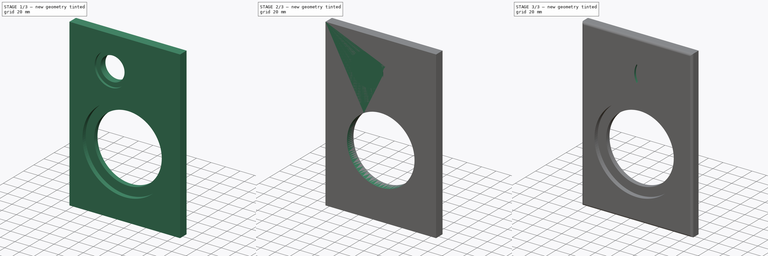
[diagram: build sequence overview — one tinted view per stage of 3, left to right]
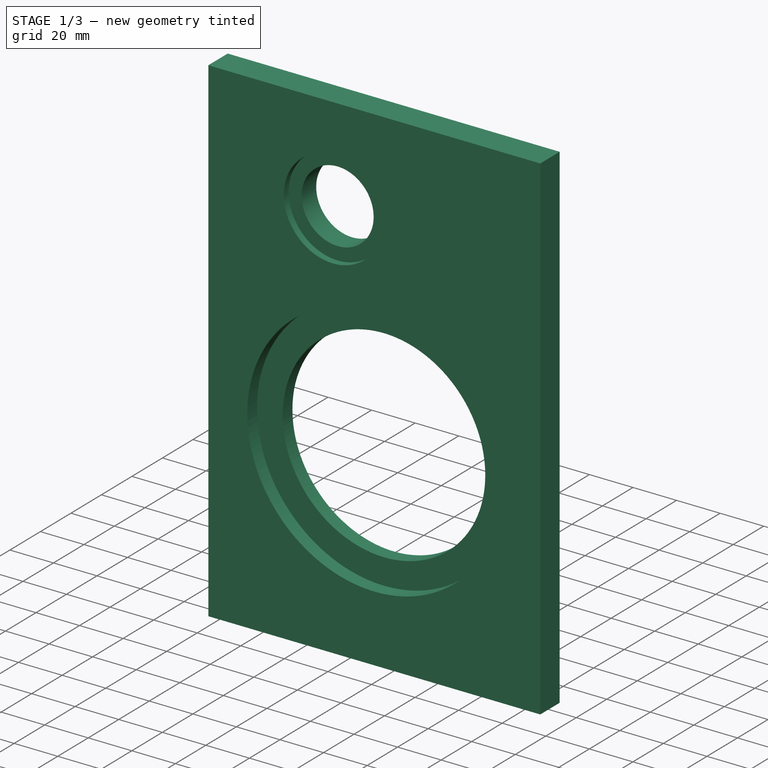
[diagram: stage 1 of 3 — iso view after this stage's code; geometry added in this stage tinted green]
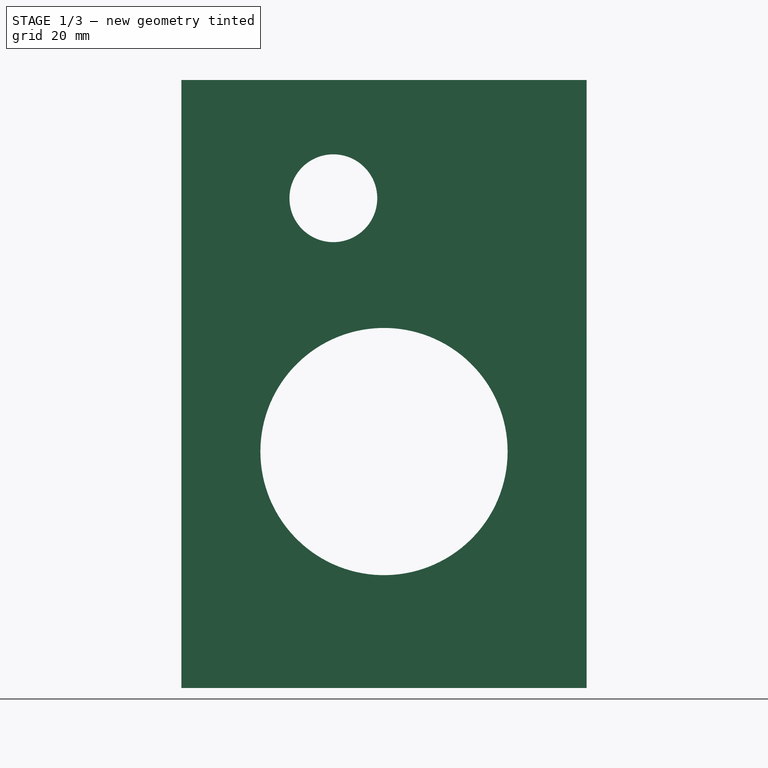
[diagram: stage 1 of 3 — front view after this stage's code; geometry added in this stage tinted green]
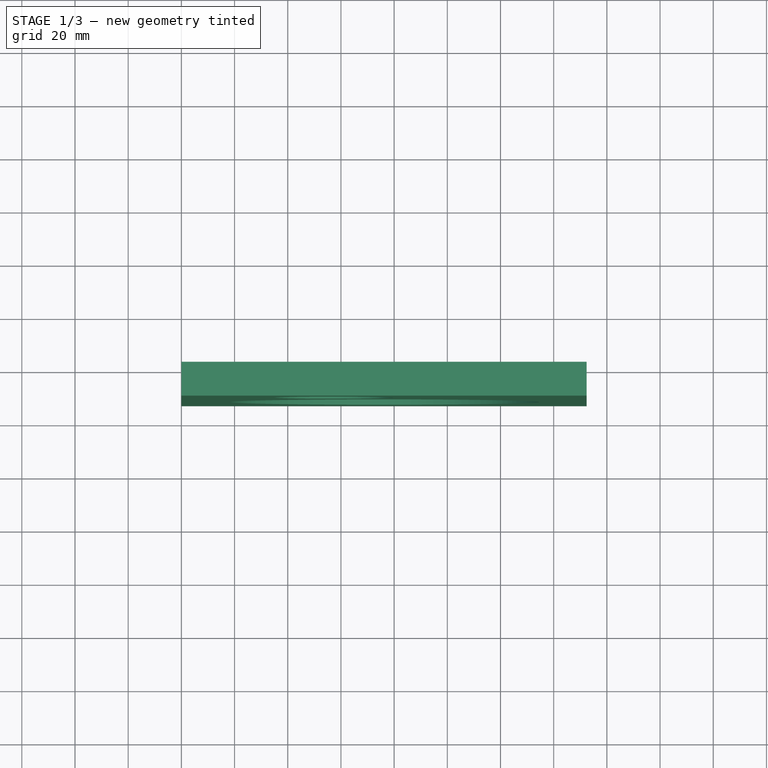
[diagram: stage 1 of 3 — top view after this stage's code; geometry added in this stage tinted green]
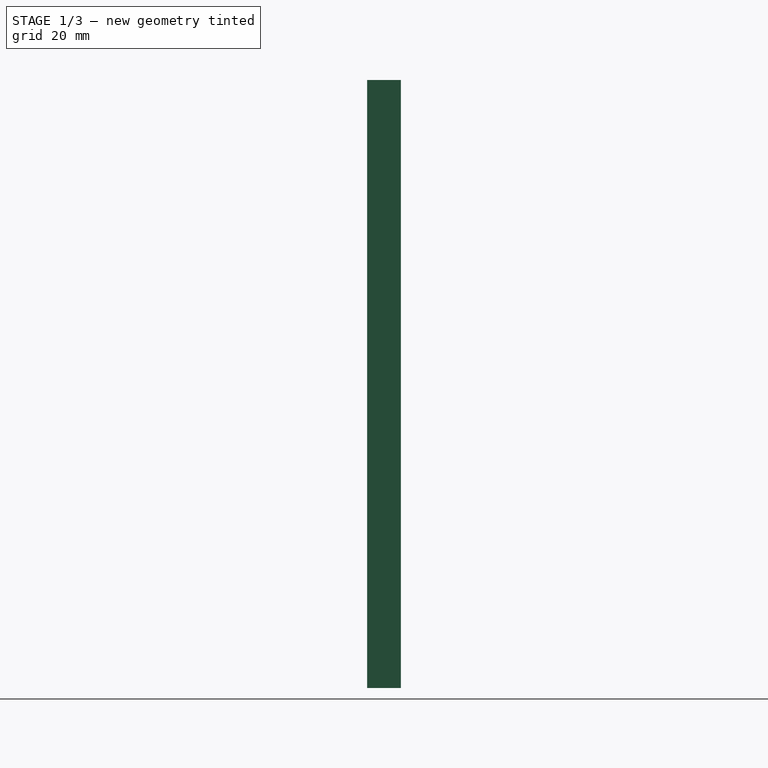
[diagram: stage 1 of 3 — right view after this stage's code; geometry added in this stage tinted green]
FCSTD DOCUMENT  (FreeCAD 1.0R39319 (Git))
Label: Overnight Sensations
License: All rights reserved
LicenseURL: https://en.wikipedia.org/wiki/All_rights_reserved
objects: Sketcher::SketchObject×8, PartDesign::Pocket×4, Spreadsheet::Sheet×2, PartDesign::Pad×2, PartDesign::Fillet×2, PartDesign::Body×2
note: 42 computed .brp shape members not serialized (recipe doc carries the construction recipe); baked Part::Feature solids carry a one-line shape summary decoded from their .brp

FEATURE [PartDesign::Body] Body  label="Baffle Left"
  AllowCompound = false
  Group = -> [Sketch,Sketch001,Pad,Sketch002,Pocket,Sketch003,Pocket001,Fillet]
  Origin = -> Origin
  Placement = pos=(-228.6,0,0) rot=(0,0,1;0rad)
  Tip = -> Fillet
FEATURE [Sketcher::SketchObject] Sketch004  label="Baffle Master Sketch001"
  ArcFitTolerance = 1e-06
  AttachmentSupport = -> [XZ_Plane001]
  FullyConstrained = true
  MakeInternals = false
  MapMode = 5
  Placement = pos=(0,0,0) rot=(1,0,0;1.5708rad)
  expr: Constraints[11] = Spreadsheet001.tweeter_cutout_diameter
  expr: Constraints[12] = Spreadsheet001.mid_cutout_diameter
  expr: Constraints[17] = Spreadsheet001.mid_outside_diameter
  expr: Constraints[20] = Spreadsheet001.tweeter_outside_diameter
  expr: Constraints[8] = Spreadsheet001.overall_width
  expr: Constraints[9] = Spreadsheet001.overall_height
  sketch-geometry (9):
    g0: LineSegment StartX=0 StartY=0 StartZ=0 EndX=152.4 EndY=0 EndZ=0
    g1: LineSegment StartX=152.4 StartY=0 StartZ=0 EndX=152.4 EndY=228.6 EndZ=0
    g2: LineSegment StartX=152.4 StartY=228.6 StartZ=0 EndX=0 EndY=228.6 EndZ=0
    g3: LineSegment StartX=0 StartY=228.6 StartZ=0 EndX=0 EndY=0 EndZ=0
    g4: Circle CenterX=57.15 CenterY=184.15 CenterZ=0 NormalX=0 NormalY=0 NormalZ=1 AngleXU=0 Radius=16.51
    g5: Circle CenterX=76.2 CenterY=88.9 CenterZ=0 NormalX=0 NormalY=0 NormalZ=1 AngleXU=0 Radius=46.482
    g6: GeomPoint [constr] X=76.2 Y=0 Z=0
    g7: Circle CenterX=76.2 CenterY=88.9 CenterZ=0 NormalX=0 NormalY=0 NormalZ=1 AngleXU=0 Radius=58.293
    g8: Circle CenterX=57.15 CenterY=184.15 CenterZ=0 NormalX=0 NormalY=0 NormalZ=1 AngleXU=0 Radius=22.479
  constraints (22):
    c: Coincident(g0,g1)
    c: Coincident(g1,g2)
    c: Coincident(g2,g3)
    c: Coincident(g3,g0)
    c: Horizontal(g0)
    c: Horizontal(g2)
    c: Vertical(g1)
    c: Vertical(g3)
    c: Distance(g1,g3) = 152.4
    c: Distance(g0,g2) = 228.6
    c: Coincident(g0,g-1)
    c: Diameter(g4) = 33.02
    c: Diameter(g5) = 92.964
    c: Distance(g4,g2) = 44.45
    c: Distance(g5,g2) = 139.7
    c: Symmetric(g0,g0,g6)
    c: Vertical(g6,g5)
    c: Diameter(g7) = 116.586
    c: Coincident(g7,g5)
    c: Coincident(g8,g4)
    c: Diameter(g8) = 44.958
    c: Distance(g4,g1) = 95.25
FEATURE [Sketcher::SketchObject] Sketch005
  ArcFitTolerance = 1e-06
  AttachmentSupport = -> [XZ_Plane001]
  ExternalGeometry = -> [Sketch004]
  FullyConstrained = true
  MakeInternals = false
  MapMode = 5
  Placement = pos=(0,0,0) rot=(1,0,0;1.5708rad)
  sketch-geometry (6):
    g0: LineSegment StartX=0 StartY=228.6 StartZ=0 EndX=0 EndY=0 EndZ=0
    g1: LineSegment StartX=0 StartY=0 StartZ=0 EndX=152.4 EndY=0 EndZ=0
    g2: LineSegment StartX=152.4 StartY=0 StartZ=0 EndX=152.4 EndY=228.6 EndZ=0
    g3: LineSegment StartX=152.4 StartY=228.6 StartZ=0 EndX=0 EndY=228.6 EndZ=0
    g4: Circle CenterX=57.15 CenterY=184.15 CenterZ=0 NormalX=0 NormalY=0 NormalZ=1 AngleXU=0 Radius=16.51
    g5: Circle CenterX=76.2 CenterY=88.9 CenterZ=0 NormalX=0 NormalY=0 NormalZ=1 AngleXU=0 Radius=46.482
  constraints (14):
    c: Coincident(g0,g1)
    c: Coincident(g1,g2)
    c: Coincident(g2,g3)
    c: Coincident(g3,g0)
    c: Vertical(g0)
    c: Vertical(g2)
    c: Horizontal(g1)
    c: Horizontal(g3)
    c: Coincident(g0,g-4)
    c: Coincident(g1,g-6)
    c: Coincident(g4,g-8)
    c: Equal(g4,g-8)
    c: Coincident(g5,g-7)
    c: Equal(g5,g-7)
FEATURE [PartDesign::Pad] Pad001
  Direction = (0,-1,2e-16)
  Length = 12.7
  Length2 = 10
  Placement = pos=(0,0,0) rot=(1,0,0;1.5708rad)
  Profile = -> Sketch005
  ReferenceAxis = -> Sketch005 [N_Axis]
  Refine = true
  Suppressed = false
  Type = 0
  expr: Length = Spreadsheet001.wall_thickness
FEATURE [Sketcher::SketchObject] Sketch006
  ArcFitTolerance = 1e-06
  AttachmentSupport = -> [Pad001]
  ExternalGeometry = -> [Sketch004]
  FullyConstrained = false
  MakeInternals = false
  MapMode = 5
  Placement = pos=(0,-12.7,0) rot=(1,0,0;1.5708rad)
  sketch-geometry (1):
    g0: Circle CenterX=76.2 CenterY=88.9 CenterZ=0 NormalX=0 NormalY=0 NormalZ=1 AngleXU=0 Radius=58.293
FEATURE [PartDesign::Pocket] Pocket002
  BaseFeature = -> Pad001
  Direction = (0,1,-2e-16)
  Length = 6.35
  Length2 = 5
  Placement = pos=(0,0,0) rot=(1,0,0;1.5708rad)
  Profile = -> Sketch006
  ReferenceAxis = -> Sketch006 [N_Axis]
  Refine = true
  Suppressed = false
  Type = 0
  expr: Length = Spreadsheet001.mid_baffle_depth
FEATURE [Sketcher::SketchObject] Sketch007
  ArcFitTolerance = 1e-06
  AttachmentSupport = -> [Pocket002]
  ExternalGeometry = -> [Sketch004]
  FullyConstrained = true
  MakeInternals = false
  MapMode = 5
  Placement = pos=(0,-12.7,0) rot=(1,0,0;1.5708rad)
  sketch-geometry (1):
    g0: Circle CenterX=57.15 CenterY=184.15 CenterZ=0 NormalX=0 NormalY=0 NormalZ=1 AngleXU=0 Radius=22.479
  constraints (2):
    c: Coincident(g0,g-3)
    c: Equal(g0,g-3)
FEATURE [PartDesign::Pocket] Pocket003
  BaseFeature = -> Pocket002
  Direction = (0,1,-2e-16)
  Length = 3.175
  Length2 = 5
  Placement = pos=(0,0,0) rot=(1,0,0;1.5708rad)
  Profile = -> Sketch007
  ReferenceAxis = -> Sketch007 [N_Axis]
  Refine = true
  Suppressed = false
  Type = 0
  expr: Length = Spreadsheet001.tweeter_baffle_depth
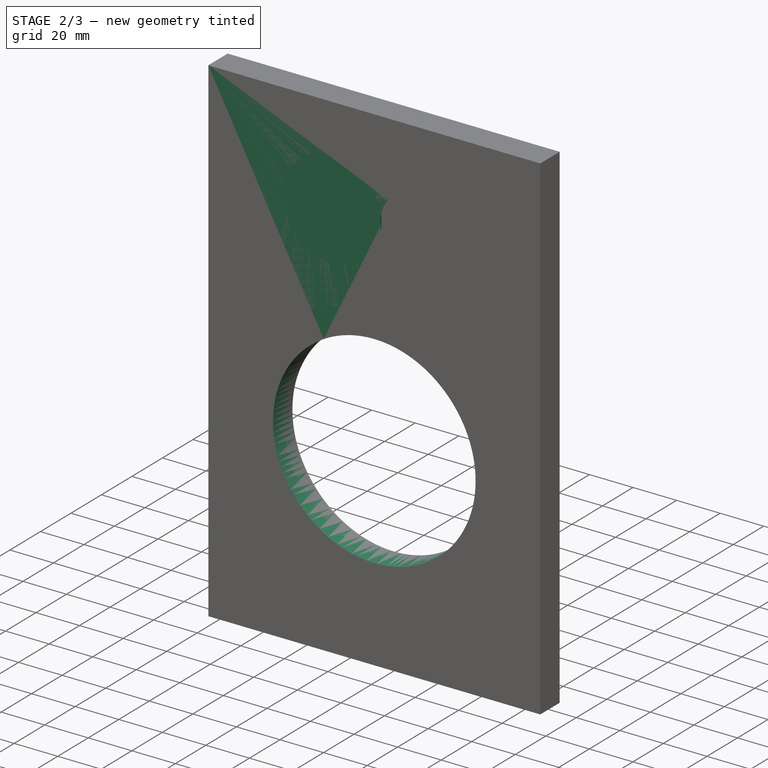
[diagram: stage 2 of 3 — iso view after this stage's code; geometry added in this stage tinted green]
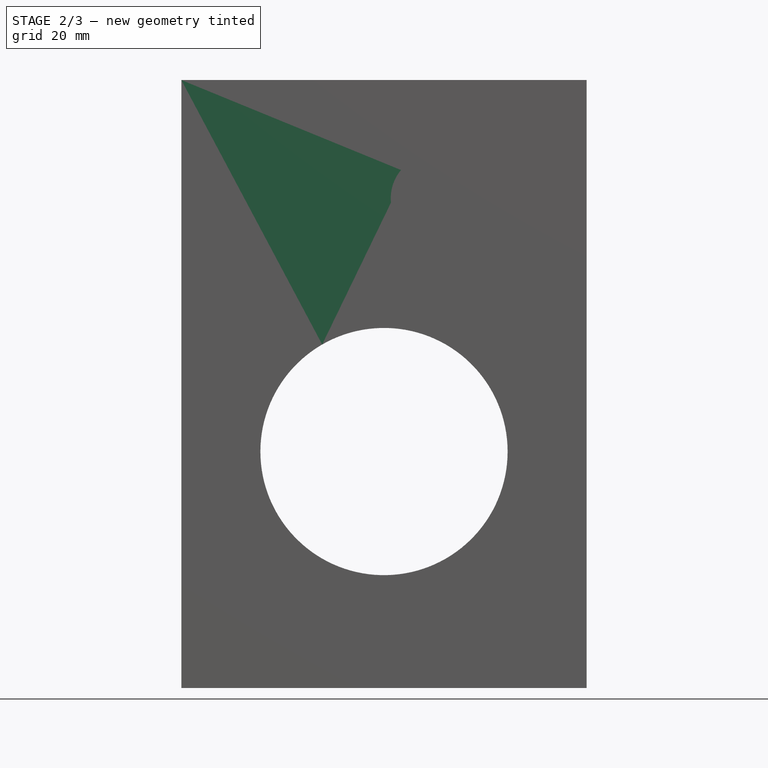
[diagram: stage 2 of 3 — front view after this stage's code; geometry added in this stage tinted green]
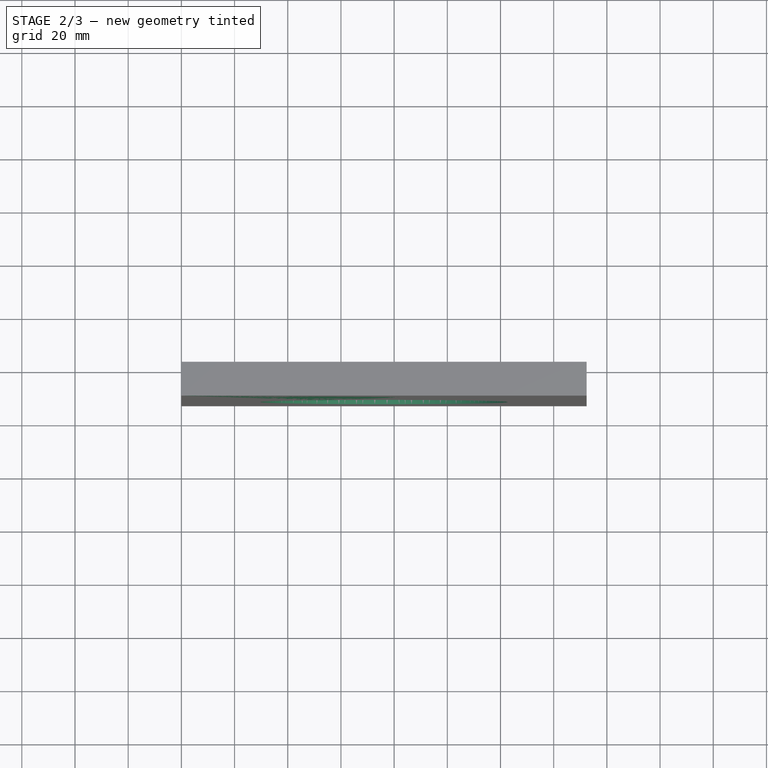
[diagram: stage 2 of 3 — top view after this stage's code; geometry added in this stage tinted green]
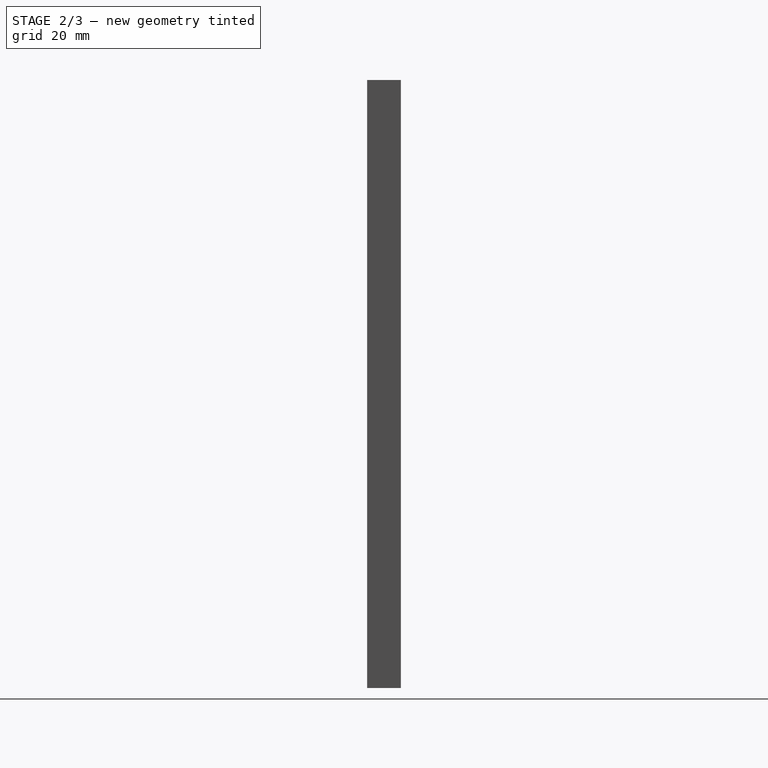
[diagram: stage 2 of 3 — right view after this stage's code; geometry added in this stage tinted green]
FEATURE [Sketcher::SketchObject] Sketch  label="Baffle Master Sketch"
  ArcFitTolerance = 1e-06
  AttachmentSupport = -> [XZ_Plane]
  FullyConstrained = true
  MakeInternals = false
  MapMode = 5
  Placement = pos=(0,0,0) rot=(1,0,0;1.5708rad)
  expr: Constraints[11] = Spreadsheet.tweeter_cutout_diameter
  expr: Constraints[12] = Spreadsheet.mid_cutout_diameter
  expr: Constraints[18] = Spreadsheet.mid_outside_diameter
  expr: Constraints[21] = Spreadsheet.tweeter_outside_diameter
  expr: Constraints[8] = Spreadsheet.overall_width
  expr: Constraints[9] = Spreadsheet.overall_height
  sketch-geometry (9):
    g0: LineSegment StartX=0 StartY=0 StartZ=0 EndX=152.4 EndY=0 EndZ=0
    g1: LineSegment StartX=152.4 StartY=0 StartZ=0 EndX=152.4 EndY=228.6 EndZ=0
    g2: LineSegment StartX=152.4 StartY=228.6 StartZ=0 EndX=0 EndY=228.6 EndZ=0
    g3: LineSegment StartX=0 StartY=228.6 StartZ=0 EndX=0 EndY=0 EndZ=0
    g4: Circle CenterX=95.25 CenterY=184.15 CenterZ=0 NormalX=0 NormalY=0 NormalZ=1 AngleXU=0 Radius=16.51
    g5: Circle CenterX=76.2 CenterY=88.9 CenterZ=0 NormalX=0 NormalY=0 NormalZ=1 AngleXU=0 Radius=46.482
    g6: GeomPoint [constr] X=76.2 Y=0 Z=0
    g7: Circle CenterX=76.2 CenterY=88.9 CenterZ=0 NormalX=0 NormalY=0 NormalZ=1 AngleXU=0 Radius=58.293
    g8: Circle CenterX=95.25 CenterY=184.15 CenterZ=0 NormalX=0 NormalY=0 NormalZ=1 AngleXU=0 Radius=22.479
  constraints (22):
    c: Coincident(g0,g1)
    c: Coincident(g1,g2)
    c: Coincident(g2,g3)
    c: Coincident(g3,g0)
    c: Horizontal(g0)
    c: Horizontal(g2)
    c: Vertical(g1)
    c: Vertical(g3)
    c: Distance(g1,g3) = 152.4
    c: Distance(g0,g2) = 228.6
    c: Coincident(g0,g-1)
    c: Diameter(g4) = 33.02
    c: Diameter(g5) = 92.964
    c: Distance(g4,g2) = 44.45
    c: Distance(g4,g3) = 95.25
    c: Distance(g5,g2) = 139.7
    c: Symmetric(g0,g0,g6)
    c: Vertical(g6,g5)
    c: Diameter(g7) = 116.586
    c: Coincident(g7,g5)
    c: Coincident(g8,g4)
    c: Diameter(g8) = 44.958
FEATURE [Spreadsheet::Sheet] Spreadsheet
  cells = A2='Speaker Specifications; B3='Power; C3='Impedance; D3='Outside Diameter; E3='Cutout Diameter; F3='Baffle Depth; G3='Specification Link; A4='HiVi-B4N-4; B4==25 W; C4='8 Ohms; D4(mid_outside_diameter)==4.59 "; E4(mid_cutout_diameter)==3.66 "; F4(mid_baffle_depth)==0.25 "; G4='https://www.parts-express.com/HiVi-B4N-4-Aluminum-Midbass-Round-Frame-297-429?quantity=1; A5='Dayton-Audio-ND20FA-6-3-4; B5==15 W; C5='6 Ohms; D5(tweeter_outside_diameter)==1.77 "; E5(tweeter_cutout_diameter)==1.3 "; F5(tweeter_baffle_depth)==0.125 "; G5='https://www.parts-express.com/Dayton-Audio-ND20FA-6-3-4-Soft-Dome-Neodymium-Tweeter-275-030?quantity=1; A7='Enclosure Specifications; B7='1/2" MDF; A8='Material Thickness; B8(wall_thickness)==0.5 "; A9='Height; B9(overall_height)==9 "; A10='Width; B10(overall_width)==6 "; A11='Depth; B11(overall_depth)==8 "
FEATURE [Sketcher::SketchObject] Sketch001
  ArcFitTolerance = 1e-06
  AttachmentSupport = -> [XZ_Plane]
  ExternalGeometry = -> [Sketch]
  FullyConstrained = true
  MakeInternals = false
  MapMode = 5
  Placement = pos=(0,0,0) rot=(1,0,0;1.5708rad)
  sketch-geometry (6):
    g0: LineSegment StartX=0 StartY=228.6 StartZ=0 EndX=0 EndY=0 EndZ=0
    g1: LineSegment StartX=0 StartY=0 StartZ=0 EndX=152.4 EndY=0 EndZ=0
    g2: LineSegment StartX=152.4 StartY=0 StartZ=0 EndX=152.4 EndY=228.6 EndZ=0
    g3: LineSegment StartX=152.4 StartY=228.6 StartZ=0 EndX=0 EndY=228.6 EndZ=0
    g4: Circle CenterX=95.25 CenterY=184.15 CenterZ=0 NormalX=0 NormalY=0 NormalZ=1 AngleXU=0 Radius=16.51
    g5: Circle CenterX=76.2 CenterY=88.9 CenterZ=0 NormalX=0 NormalY=0 NormalZ=1 AngleXU=0 Radius=46.482
  constraints (14):
    c: Coincident(g0,g1)
    c: Coincident(g1,g2)
    c: Coincident(g2,g3)
    c: Coincident(g3,g0)
    c: Vertical(g0)
    c: Vertical(g2)
    c: Horizontal(g1)
    c: Horizontal(g3)
    c: Coincident(g0,g-4)
    c: Coincident(g1,g-6)
    c: Coincident(g4,g-8)
    c: Equal(g4,g-8)
    c: Coincident(g5,g-7)
    c: Equal(g5,g-7)
FEATURE [PartDesign::Pad] Pad
  Direction = (0,-1,2e-16)
  Length = 12.7
  Length2 = 10
  Placement = pos=(0,0,0) rot=(1,0,0;1.5708rad)
  Profile = -> Sketch001
  ReferenceAxis = -> Sketch001 [N_Axis]
  Refine = true
  Suppressed = false
  Type = 0
  expr: Length = Spreadsheet.wall_thickness
FEATURE [PartDesign::Fillet] Fillet001
  Base = -> Pocket003 [Edge7,Edge4,Edge10,Edge14]
  BaseFeature = -> Pocket003
  Placement = pos=(0,0,0) rot=(1,0,0;1.5708rad)
  Radius = 3.175
  Refine = true
  SupportTransform = false
  Suppressed = false
  UseAllEdges = false
FEATURE [PartDesign::Body] Body001  label="Baffle Right"
  AllowCompound = false
  Group = -> [Sketch004,Sketch005,Pad001,Sketch006,Pocket002,Sketch007,Pocket003,Fillet001]
  Origin = -> Origin001
  Tip = -> Fillet001
FEATURE [Spreadsheet::Sheet] Spreadsheet001
  cells = A2='Speaker Specifications; B3='Power; C3='Impedance; D3='Outside Diameter; E3='Cutout Diameter; F3='Baffle Depth; G3='Specification Link; A4='HiVi-B4N-4; B4==25 W; C4='8 Ohms; D4(mid_outside_diameter)==4.59 "; E4(mid_cutout_diameter)==3.66 "; F4(mid_baffle_depth)==0.25 "; G4='https://www.parts-express.com/HiVi-B4N-4-Aluminum-Midbass-Round-Frame-297-429?quantity=1; A5='Dayton-Audio-ND20FA-6-3-4; B5==15 W; C5='6 Ohms; D5(tweeter_outside_diameter)==1.77 "; E5(tweeter_cutout_diameter)==1.3 "; F5(tweeter_baffle_depth)==0.125 "; G5='https://www.parts-express.com/Dayton-Audio-ND20FA-6-3-4-Soft-Dome-Neodymium-Tweeter-275-030?quantity=1; A7='Enclosure Specifications; B7='1/2" MDF; A8='Material Thickness; B8(wall_thickness)==0.5 "; A9='Height; B9(overall_height)==9 "; A10='Width; B10(overall_width)==6 "; A11='Depth; B11(overall_depth)==8 "
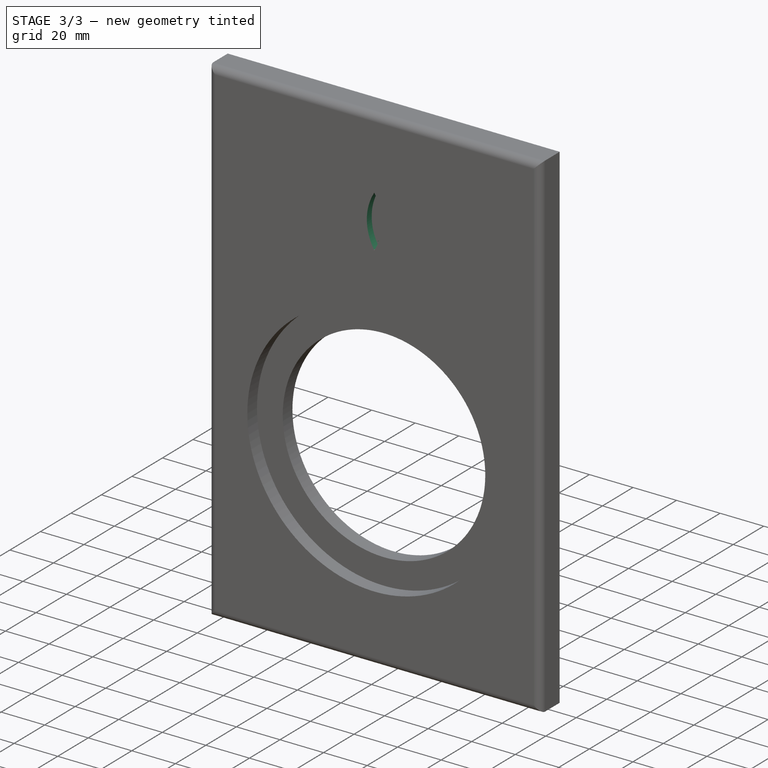
[diagram: stage 3 of 3 — iso view after this stage's code; geometry added in this stage tinted green]
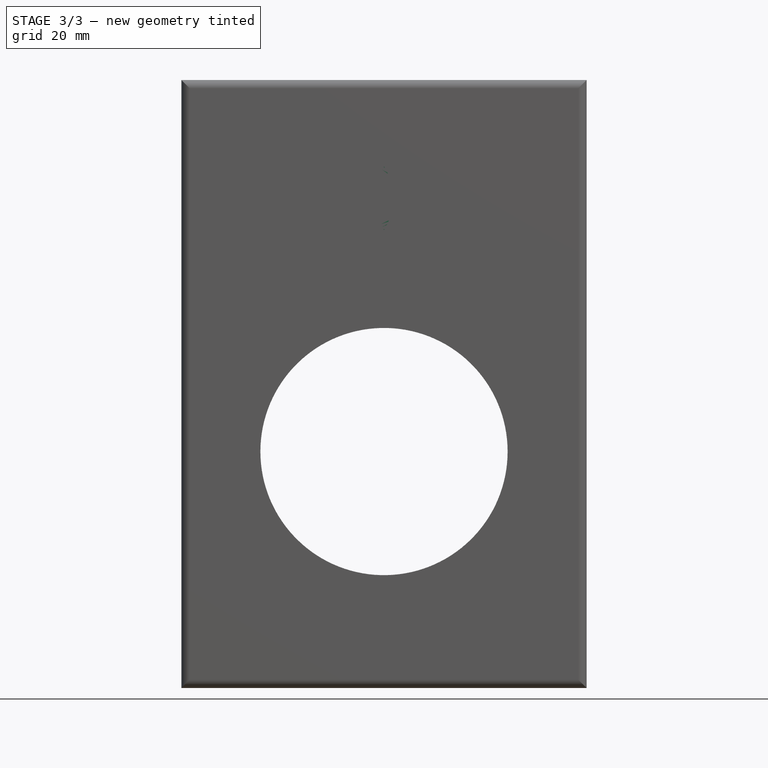
[diagram: stage 3 of 3 — front view after this stage's code; geometry added in this stage tinted green]
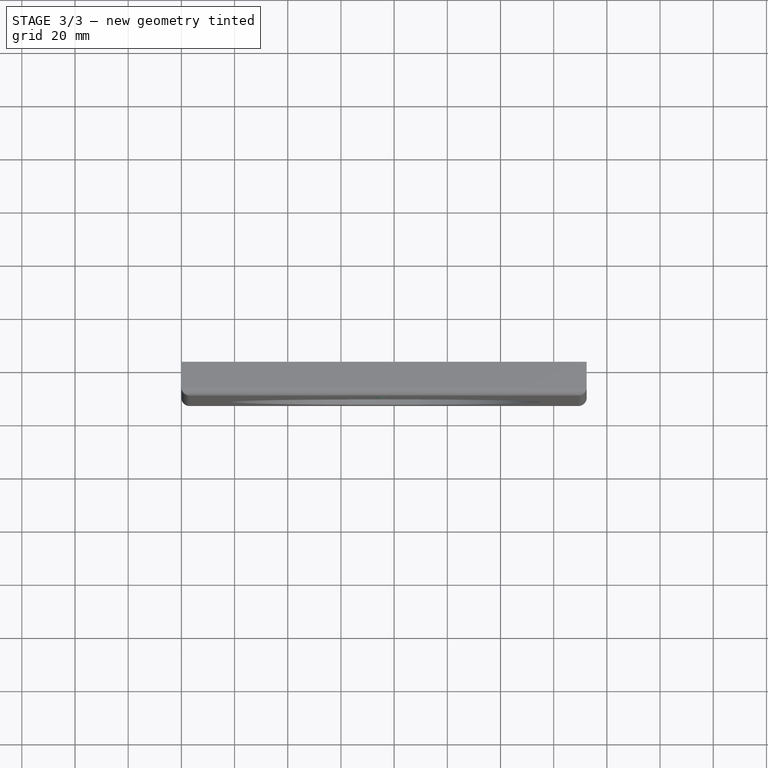
[diagram: stage 3 of 3 — top view after this stage's code; geometry added in this stage tinted green]
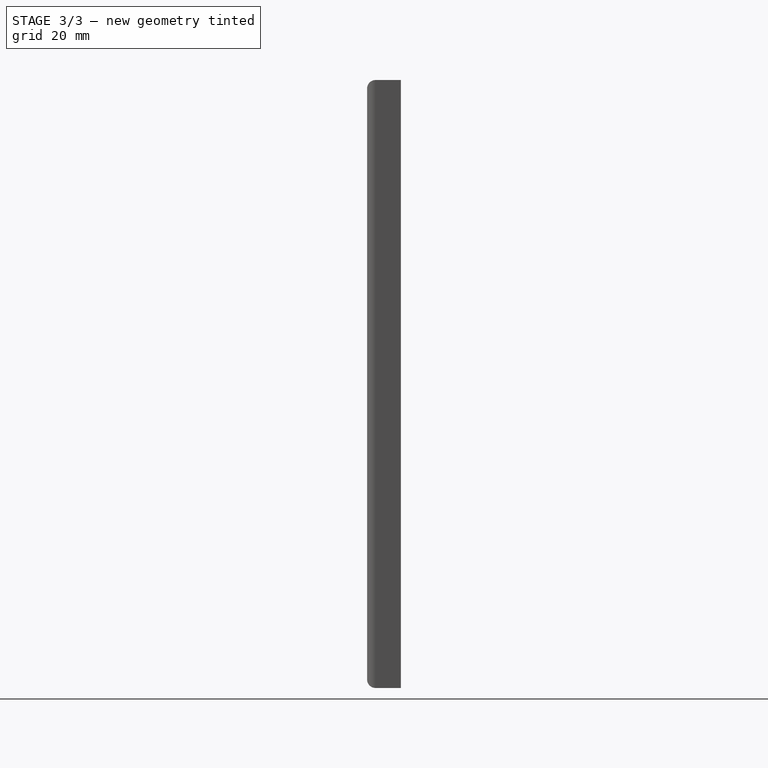
[diagram: stage 3 of 3 — right view after this stage's code; geometry added in this stage tinted green]
FEATURE [Sketcher::SketchObject] Sketch002
  ArcFitTolerance = 1e-06
  AttachmentSupport = -> [Pad]
  ExternalGeometry = -> [Sketch]
  FullyConstrained = false
  MakeInternals = false
  MapMode = 5
  Placement = pos=(0,-12.7,0) rot=(1,0,0;1.5708rad)
  sketch-geometry (1):
    g0: Circle CenterX=76.2 CenterY=88.9 CenterZ=0 NormalX=0 NormalY=0 NormalZ=1 AngleXU=0 Radius=58.293
FEATURE [PartDesign::Pocket] Pocket
  BaseFeature = -> Pad
  Direction = (0,1,-2e-16)
  Length = 6.35
  Length2 = 5
  Placement = pos=(0,0,0) rot=(1,0,0;1.5708rad)
  Profile = -> Sketch002
  ReferenceAxis = -> Sketch002 [N_Axis]
  Refine = true
  Suppressed = false
  Type = 0
  expr: Length = Spreadsheet.mid_baffle_depth
FEATURE [Sketcher::SketchObject] Sketch003
  ArcFitTolerance = 1e-06
  AttachmentSupport = -> [Pocket]
  ExternalGeometry = -> [Sketch]
  FullyConstrained = true
  MakeInternals = false
  MapMode = 5
  Placement = pos=(0,-12.7,0) rot=(1,0,0;1.5708rad)
  sketch-geometry (1):
    g0: Circle CenterX=95.25 CenterY=184.15 CenterZ=0 NormalX=0 NormalY=0 NormalZ=1 AngleXU=0 Radius=22.479
  constraints (2):
    c: Coincident(g0,g-3)
    c: Equal(g0,g-3)
FEATURE [PartDesign::Pocket] Pocket001
  BaseFeature = -> Pocket
  Direction = (0,1,-2e-16)
  Length = 3.175
  Length2 = 5
  Placement = pos=(0,0,0) rot=(1,0,0;1.5708rad)
  Profile = -> Sketch003
  ReferenceAxis = -> Sketch003 [N_Axis]
  Refine = true
  Suppressed = false
  Type = 0
  expr: Length = Spreadsheet.tweeter_baffle_depth
FEATURE [PartDesign::Fillet] Fillet
  Base = -> Pocket001 [Edge7,Edge4,Edge10,Edge14]
  BaseFeature = -> Pocket001
  Placement = pos=(0,0,0) rot=(1,0,0;1.5708rad)
  Radius = 3.175
  Refine = true
  SupportTransform = false
  Suppressed = false
  UseAllEdges = false
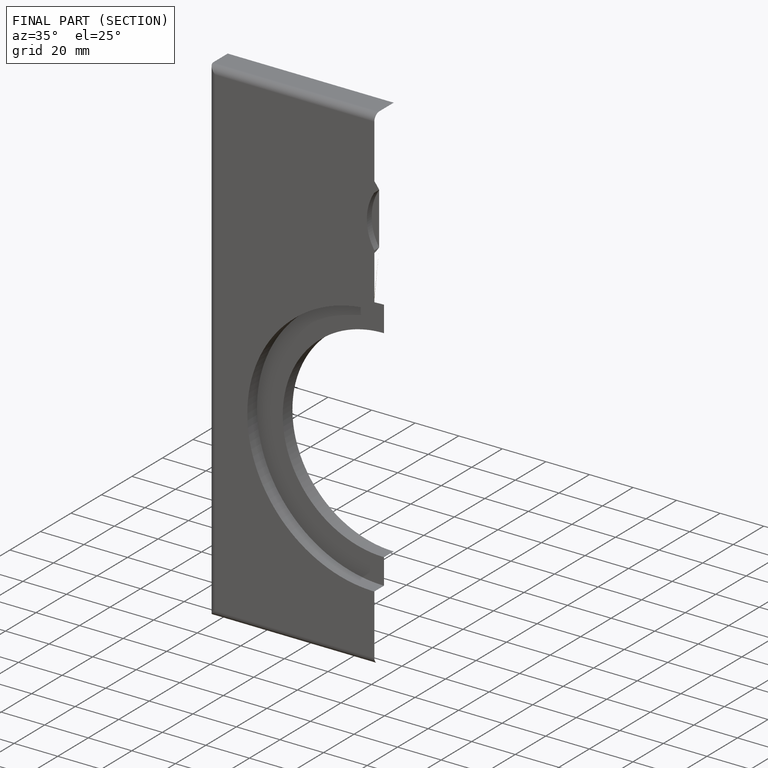
[diagram: finished part — half-section view (interior)]
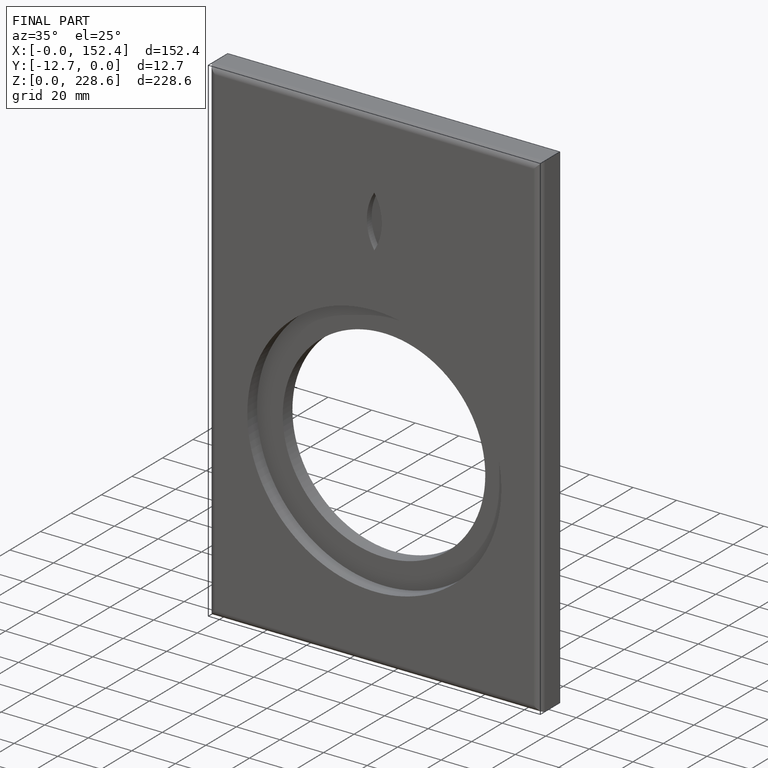
[diagram: finished part — iso view with bounding-box wireframe]
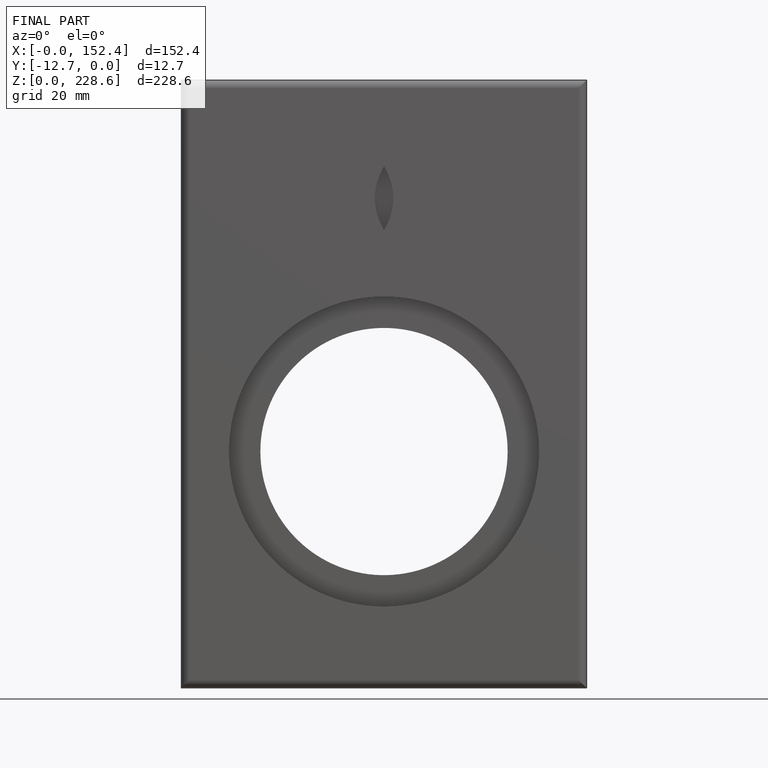
[diagram: finished part — front view with bounding-box wireframe]
